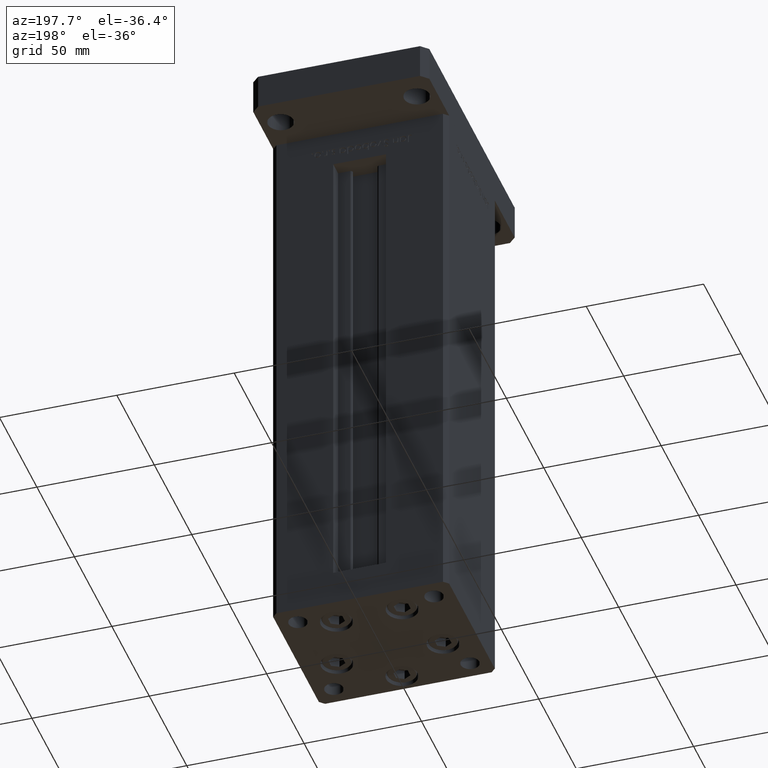
[diagram: clean part render]
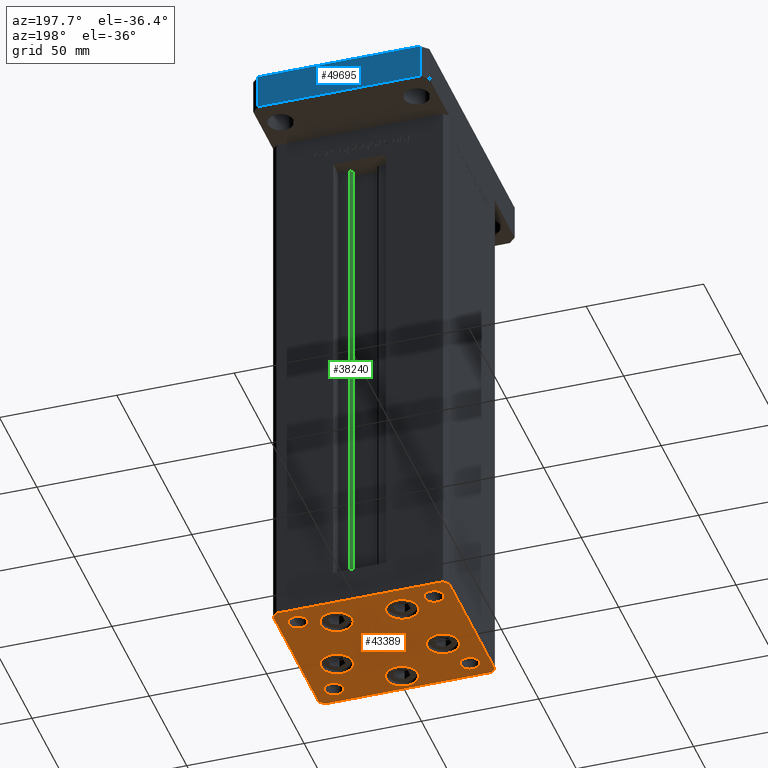
[diagram: same view with three faces highlighted in distinct colors, each labeled with its STEP entity id]
A machine part, auxiliary view with three faces highlighted in distinct colors.
Their STEP definitions:

[orange] entity #43389 — the highlighted planar face has unit normal (0, 0, -1).
#130 = CARTESIAN_POINT ( 'NONE',  ( -29.37741699797393125, -8.000000000000005329, 0.000000000000000000 ) ) ;
#256 = ORIENTED_EDGE ( 'NONE', *, *, #31520, .T. ) ;
#270 = VECTOR ( 'NONE', #30711, 1000.000000000000000 ) ;
#711 = CARTESIAN_POINT ( 'NONE',  ( 22.62741699796951877, -8.000000000000000000, 0.000000000000000000 ) ) ;
#738 = FACE_BOUND ( 'NONE', #48170, .T. ) ;
#1433 = ORIENTED_EDGE ( 'NONE', *, *, #13221, .T. ) ;
#1566 = EDGE_CURVE ( 'NONE', #18526, #13263, #46971, .T. ) ;
#1706 = VERTEX_POINT ( 'NONE', #130 ) ;
#1913 = EDGE_LOOP ( 'NONE', ( #53044, #39688 ) ) ;
#2440 = AXIS2_PLACEMENT_3D ( 'NONE', #18557, #25884, #18283 ) ;
#2469 = DIRECTION ( 'NONE',  ( 0.000000000000000000, -0.000000000000000000, -1.000000000000000000 ) ) ;
#2639 = EDGE_CURVE ( 'NONE', #17594, #31909, #20125, .T. ) ;
#3325 = EDGE_LOOP ( 'NONE', ( #8396, #27125 ) ) ;
#3338 = CARTESIAN_POINT ( 'NONE',  ( -22.62741699796951877, -8.000000000000005329, 0.000000000000000000 ) ) ;
#3517 = CIRCLE ( 'NONE', #14782, 6.750000000004410694 ) ;
#3522 = CARTESIAN_POINT ( 'NONE',  ( 7.241068579628817226, 19.50000000000000000, 0.000000000000000000 ) ) ;
#3589 = VECTOR ( 'NONE', #24152, 999.9999999999998863 ) ;
#3623 = EDGE_CURVE ( 'NONE', #31029, #19663, #12266, .T. ) ;
#3911 = VERTEX_POINT ( 'NONE', #45801 ) ;
#4147 = ORIENTED_EDGE ( 'NONE', *, *, #33895, .T. ) ;
#4318 = AXIS2_PLACEMENT_3D ( 'NONE', #51369, #15056, #40253 ) ;
#4340 = CARTESIAN_POINT ( 'NONE',  ( -35.49999999999998579, -32.50000000000001421, 0.000000000000000000 ) ) ;
#4422 = EDGE_CURVE ( 'NONE', #50507, #31667, #12516, .T. ) ;
#4552 = CIRCLE ( 'NONE', #7170, 6.750000000004412470 ) ;
#4655 = CIRCLE ( 'NONE', #26293, 4.000000000000000000 ) ;
#4812 = FACE_BOUND ( 'NONE', #36387, .T. ) ;
#5060 = CARTESIAN_POINT ( 'NONE',  ( 33.00000000000001421, 24.00000000000000711, 0.000000000000000000 ) ) ;
#5343 = FACE_BOUND ( 'NONE', #14192, .T. ) ;
#5611 = FACE_BOUND ( 'NONE', #29294, .T. ) ;
#5780 = CARTESIAN_POINT ( 'NONE',  ( 6.750000000004413359, -24.00000000000000000, 0.000000000000000000 ) ) ;
#6260 = VERTEX_POINT ( 'NONE', #28459 ) ;
#6430 = DIRECTION ( 'NONE',  ( 0.000000000000000000, -0.000000000000000000, -1.000000000000000000 ) ) ;
#6876 = CARTESIAN_POINT ( 'NONE',  ( 22.62741699796951877, -8.000000000000000000, 0.000000000000000000 ) ) ;
#7063 = DIRECTION ( 'NONE',  ( 0.7071067811865474617, -0.7071067811865474617, 0.000000000000000000 ) ) ;
#7077 = ORIENTED_EDGE ( 'NONE', *, *, #7452, .T. ) ;
#7111 = CARTESIAN_POINT ( 'NONE',  ( -37.49999999999998579, -30.50000000000001421, 0.000000000000000000 ) ) ;
#7170 = AXIS2_PLACEMENT_3D ( 'NONE', #46081, #29801, #30329 ) ;
#7346 = AXIS2_PLACEMENT_3D ( 'NONE', #27555, #6430, #18619 ) ;
#7452 = EDGE_CURVE ( 'NONE', #19954, #25192, #31544, .T. ) ;
#7933 = DIRECTION ( 'NONE',  ( 0.000000000000000000, -0.000000000000000000, -1.000000000000000000 ) ) ;
#7941 = ORIENTED_EDGE ( 'NONE', *, *, #45464, .T. ) ;
#7942 = CARTESIAN_POINT ( 'NONE',  ( -35.50000000000002842, 32.49999999999999289, 0.000000000000000000 ) ) ;
#8276 = EDGE_CURVE ( 'NONE', #3911, #31029, #29375, .T. ) ;
#8373 = CARTESIAN_POINT ( 'NONE',  ( -33.00000000000000711, -23.99999999999999289, 0.000000000000000000 ) ) ;
#8396 = ORIENTED_EDGE ( 'NONE', *, *, #32134, .F. ) ;
#8704 = DIRECTION ( 'NONE',  ( 1.000000000000000000, 0.000000000000000000, 0.000000000000000000 ) ) ;
#8914 = VECTOR ( 'NONE', #44809, 1000.000000000000000 ) ;
#9544 = DIRECTION ( 'NONE',  ( 0.000000000000000000, -0.000000000000000000, -1.000000000000000000 ) ) ;
#9617 = CARTESIAN_POINT ( 'NONE',  ( 25.00000000000000711, 24.00000000000000711, 0.000000000000000000 ) ) ;
#10410 = VECTOR ( 'NONE', #7063, 1000.000000000000114 ) ;
#10516 = CIRCLE ( 'NONE', #51202, 6.750000000004407141 ) ;
#10845 = CARTESIAN_POINT ( 'NONE',  ( -37.49999999999998579, -30.50000000000001421, 0.000000000000000000 ) ) ;
#11048 = CIRCLE ( 'NONE', #49977, 6.750000000004410694 ) ;
#11472 = DIRECTION ( 'NONE',  ( 0.000000000000000000, -0.000000000000000000, -1.000000000000000000 ) ) ;
#12159 = VERTEX_POINT ( 'NONE', #43103 ) ;
#12266 = LINE ( 'NONE', #7942, #8914 ) ;
#12348 = AXIS2_PLACEMENT_3D ( 'NONE', #6876, #7933, #23389 ) ;
#12516 = CIRCLE ( 'NONE', #16010, 3.999999999999996447 ) ;
#12586 = AXIS2_PLACEMENT_3D ( 'NONE', #20070, #44739, #40401 ) ;
#13142 = ORIENTED_EDGE ( 'NONE', *, *, #47314, .T. ) ;
#13221 = EDGE_CURVE ( 'NONE', #41283, #41201, #48166, .T. ) ;
#13263 = VERTEX_POINT ( 'NONE', #5060 ) ;
#13474 = CARTESIAN_POINT ( 'NONE',  ( 0.000000000000000000, 0.000000000000000000, 0.000000000000000000 ) ) ;
#13699 = AXIS2_PLACEMENT_3D ( 'NONE', #711, #37300, #42436 ) ;
#13943 = EDGE_CURVE ( 'NONE', #22095, #16078, #44635, .T. ) ;
#14044 = CARTESIAN_POINT ( 'NONE',  ( -37.50000000000001421, 30.49999999999998579, 0.000000000000000000 ) ) ;
#14192 = EDGE_LOOP ( 'NONE', ( #13142, #7941 ) ) ;
#14381 = CARTESIAN_POINT ( 'NONE',  ( -25.00000000000001066, -23.99999999999999289, 0.000000000000000000 ) ) ;
#14743 = VECTOR ( 'NONE', #38701, 1000.000000000000000 ) ;
#14782 = AXIS2_PLACEMENT_3D ( 'NONE', #17143, #9544, #25270 ) ;
#15056 = DIRECTION ( 'NONE',  ( -0.000000000000000000, 0.000000000000000000, 1.000000000000000000 ) ) ;
#15377 = DIRECTION ( 'NONE',  ( -1.478780668045802821E-15, 1.000000000000000000, 0.000000000000000000 ) ) ;
#16010 = AXIS2_PLACEMENT_3D ( 'NONE', #29858, #38264, #33122 ) ;
#16078 = VERTEX_POINT ( 'NONE', #3522 ) ;
#16478 = CIRCLE ( 'NONE', #4318, 3.999999999999996447 ) ;
#16486 = CARTESIAN_POINT ( 'NONE',  ( -20.74106857963763773, 19.49999999999999645, 0.000000000000000000 ) ) ;
#17143 = CARTESIAN_POINT ( 'NONE',  ( 2.939152317953647500E-15, -24.00000000000000000, 0.000000000000000000 ) ) ;
#17269 = DIRECTION ( 'NONE',  ( 1.000000000000000000, 0.000000000000000000, 0.000000000000000000 ) ) ;
#17466 = VECTOR ( 'NONE', #44135, 1000.000000000000000 ) ;
#17594 = VERTEX_POINT ( 'NONE', #37459 ) ;
#17638 = EDGE_CURVE ( 'NONE', #47281, #6260, #49657, .T. ) ;
#17879 = CIRCLE ( 'NONE', #52514, 6.750000000004410694 ) ;
#17883 = EDGE_CURVE ( 'NONE', #34444, #12159, #17879, .T. ) ;
#17983 = EDGE_LOOP ( 'NONE', ( #21866, #51300 ) ) ;
#18283 = DIRECTION ( 'NONE',  ( 1.000000000000000000, 0.000000000000000000, 0.000000000000000000 ) ) ;
#18523 = EDGE_CURVE ( 'NONE', #45785, #27322, #23999, .T. ) ;
#18526 = VERTEX_POINT ( 'NONE', #9617 ) ;
#18557 = CARTESIAN_POINT ( 'NONE',  ( -13.99106857963322703, 19.49999999999999645, 0.000000000000000000 ) ) ;
#18619 = DIRECTION ( 'NONE',  ( 1.000000000000000000, 0.000000000000000000, 0.000000000000000000 ) ) ;
#19328 = ORIENTED_EDGE ( 'NONE', *, *, #1566, .F. ) ;
#19460 = ORIENTED_EDGE ( 'NONE', *, *, #3623, .T. ) ;
#19663 = VERTEX_POINT ( 'NONE', #38020 ) ;
#19921 = EDGE_CURVE ( 'NONE', #51242, #27617, #11048, .T. ) ;
#19954 = VERTEX_POINT ( 'NONE', #14381 ) ;
#20070 = CARTESIAN_POINT ( 'NONE',  ( 13.99106857963322348, 19.50000000000000000, 0.000000000000000000 ) ) ;
#20125 = CIRCLE ( 'NONE', #12348, 6.750000000004408918 ) ;
#20736 = EDGE_CURVE ( 'NONE', #27322, #45785, #42212, .T. ) ;
#21338 = FACE_BOUND ( 'NONE', #29734, .T. ) ;
#21431 = AXIS2_PLACEMENT_3D ( 'NONE', #51772, #44450, #34961 ) ;
#21541 = VERTEX_POINT ( 'NONE', #30866 ) ;
#21601 = FACE_OUTER_BOUND ( 'NONE', #35222, .T. ) ;
#21708 = EDGE_CURVE ( 'NONE', #12159, #34444, #25800, .T. ) ;
#21786 = DIRECTION ( 'NONE',  ( 1.000000000000000000, 0.000000000000000000, 0.000000000000000000 ) ) ;
#21866 = ORIENTED_EDGE ( 'NONE', *, *, #17883, .T. ) ;
#21964 = DIRECTION ( 'NONE',  ( 0.000000000000000000, -0.000000000000000000, -1.000000000000000000 ) ) ;
#22095 = VERTEX_POINT ( 'NONE', #48562 ) ;
#22139 = PLANE ( 'NONE',  #28647 ) ;
#23008 = CARTESIAN_POINT ( 'NONE',  ( 29.00000000000001066, 24.00000000000000711, 0.000000000000000000 ) ) ;
#23389 = DIRECTION ( 'NONE',  ( 1.000000000000000000, 0.000000000000000000, 0.000000000000000000 ) ) ;
#23999 = CIRCLE ( 'NONE', #36950, 4.000000000000003553 ) ;
#24152 = DIRECTION ( 'NONE',  ( -0.7071067811865482389, 0.7071067811865469066, 0.000000000000000000 ) ) ;
#24474 = ORIENTED_EDGE ( 'NONE', *, *, #20736, .T. ) ;
#24646 = CARTESIAN_POINT ( 'NONE',  ( 37.50000000000001421, -30.50000000000000711, 0.000000000000000000 ) ) ;
#25192 = VERTEX_POINT ( 'NONE', #8373 ) ;
#25270 = DIRECTION ( 'NONE',  ( 1.000000000000000000, 0.000000000000000000, 0.000000000000000000 ) ) ;
#25311 = ORIENTED_EDGE ( 'NONE', *, *, #17638, .T. ) ;
#25349 = DIRECTION ( 'NONE',  ( 1.000000000000000000, 0.000000000000000000, 0.000000000000000000 ) ) ;
#25618 = DIRECTION ( 'NONE',  ( 0.000000000000000000, -0.000000000000000000, -1.000000000000000000 ) ) ;
#25672 = FACE_BOUND ( 'NONE', #3325, .T. ) ;
#25800 = CIRCLE ( 'NONE', #2440, 6.750000000004410694 ) ;
#25884 = DIRECTION ( 'NONE',  ( 0.000000000000000000, -0.000000000000000000, -1.000000000000000000 ) ) ;
#26023 = CARTESIAN_POINT ( 'NONE',  ( 2.939152317953647500E-15, -24.00000000000000000, 0.000000000000000000 ) ) ;
#26293 = AXIS2_PLACEMENT_3D ( 'NONE', #51494, #50965, #46895 ) ;
#26447 = EDGE_CURVE ( 'NONE', #31909, #17594, #50057, .T. ) ;
#26572 = DIRECTION ( 'NONE',  ( -0.000000000000000000, 0.000000000000000000, 1.000000000000000000 ) ) ;
#26925 = CARTESIAN_POINT ( 'NONE',  ( 13.99106857963322348, 19.50000000000000000, 0.000000000000000000 ) ) ;
#27125 = ORIENTED_EDGE ( 'NONE', *, *, #4422, .F. ) ;
#27188 = CIRCLE ( 'NONE', #28048, 4.000000000000003553 ) ;
#27322 = VERTEX_POINT ( 'NONE', #43502 ) ;
#27555 = CARTESIAN_POINT ( 'NONE',  ( -29.00000000000001066, -23.99999999999999289, 0.000000000000000000 ) ) ;
#27606 = CARTESIAN_POINT ( 'NONE',  ( 35.50000000000000711, -32.50000000000000711, 0.000000000000000000 ) ) ;
#27617 = VERTEX_POINT ( 'NONE', #5780 ) ;
#28048 = AXIS2_PLACEMENT_3D ( 'NONE', #49961, #26572, #30350 ) ;
#28231 = LINE ( 'NONE', #44766, #3589 ) ;
#28274 = DIRECTION ( 'NONE',  ( 1.000000000000000000, 9.773090005503140331E-17, 0.000000000000000000 ) ) ;
#28459 = CARTESIAN_POINT ( 'NONE',  ( 35.50000000000000711, -32.50000000000000711, 0.000000000000000000 ) ) ;
#28597 = LINE ( 'NONE', #27606, #17466 ) ;
#28647 = AXIS2_PLACEMENT_3D ( 'NONE', #13474, #29990, #17269 ) ;
#28832 = ORIENTED_EDGE ( 'NONE', *, *, #46027, .T. ) ;
#29294 = EDGE_LOOP ( 'NONE', ( #7077, #29703 ) ) ;
#29375 = LINE ( 'NONE', #45925, #270 ) ;
#29557 = ORIENTED_EDGE ( 'NONE', *, *, #51512, .F. ) ;
#29703 = ORIENTED_EDGE ( 'NONE', *, *, #51575, .T. ) ;
#29734 = EDGE_LOOP ( 'NONE', ( #37806, #24474 ) ) ;
#29754 = LINE ( 'NONE', #14044, #14743 ) ;
#29801 = DIRECTION ( 'NONE',  ( 0.000000000000000000, -0.000000000000000000, -1.000000000000000000 ) ) ;
#29858 = CARTESIAN_POINT ( 'NONE',  ( -29.00000000000001066, 24.00000000000000711, 0.000000000000000000 ) ) ;
#29885 = CARTESIAN_POINT ( 'NONE',  ( -35.50000000000002842, 32.49999999999999289, 0.000000000000000000 ) ) ;
#29990 = DIRECTION ( 'NONE',  ( -0.000000000000000000, 0.000000000000000000, 1.000000000000000000 ) ) ;
#30329 = DIRECTION ( 'NONE',  ( 1.000000000000000000, 0.000000000000000000, 0.000000000000000000 ) ) ;
#30350 = DIRECTION ( 'NONE',  ( 1.000000000000000000, 0.000000000000000000, 0.000000000000000000 ) ) ;
#30506 = AXIS2_PLACEMENT_3D ( 'NONE', #23008, #47664, #35199 ) ;
#30711 = DIRECTION ( 'NONE',  ( -1.000000000000000000, -1.954618001100629052E-16, 0.000000000000000000 ) ) ;
#30866 = CARTESIAN_POINT ( 'NONE',  ( -15.87741699796510808, -8.000000000000005329, 0.000000000000000000 ) ) ;
#31029 = VERTEX_POINT ( 'NONE', #29885 ) ;
#31499 = ORIENTED_EDGE ( 'NONE', *, *, #39972, .T. ) ;
#31520 = EDGE_CURVE ( 'NONE', #49746, #47281, #52035, .T. ) ;
#31544 = CIRCLE ( 'NONE', #7346, 4.000000000000000000 ) ;
#31639 = EDGE_CURVE ( 'NONE', #19663, #49746, #29754, .T. ) ;
#31667 = VERTEX_POINT ( 'NONE', #46306 ) ;
#31909 = VERTEX_POINT ( 'NONE', #45714 ) ;
#32134 = EDGE_CURVE ( 'NONE', #31667, #50507, #16478, .T. ) ;
#33122 = DIRECTION ( 'NONE',  ( 1.000000000000000000, 0.000000000000000000, 0.000000000000000000 ) ) ;
#33895 = EDGE_CURVE ( 'NONE', #27617, #51242, #3517, .T. ) ;
#34444 = VERTEX_POINT ( 'NONE', #16486 ) ;
#34961 = DIRECTION ( 'NONE',  ( 1.000000000000000000, 0.000000000000000000, 0.000000000000000000 ) ) ;
#35199 = DIRECTION ( 'NONE',  ( 1.000000000000000000, 0.000000000000000000, 0.000000000000000000 ) ) ;
#35222 = EDGE_LOOP ( 'NONE', ( #256, #25311, #28832, #1433, #31499, #42522, #19460, #51119 ) ) ;
#35556 = CARTESIAN_POINT ( 'NONE',  ( -33.00000000000000711, 24.00000000000000711, 0.000000000000000000 ) ) ;
#35587 = DIRECTION ( 'NONE',  ( 1.000000000000000000, 0.000000000000000000, 0.000000000000000000 ) ) ;
#36387 = EDGE_LOOP ( 'NONE', ( #53221, #4147 ) ) ;
#36950 = AXIS2_PLACEMENT_3D ( 'NONE', #42676, #25618, #25349 ) ;
#37300 = DIRECTION ( 'NONE',  ( 0.000000000000000000, -0.000000000000000000, -1.000000000000000000 ) ) ;
#37459 = CARTESIAN_POINT ( 'NONE',  ( 29.37741699797392769, -8.000000000000000000, 0.000000000000000000 ) ) ;
#37806 = ORIENTED_EDGE ( 'NONE', *, *, #18523, .T. ) ;
#38020 = CARTESIAN_POINT ( 'NONE',  ( -37.50000000000001421, 30.49999999999998579, 0.000000000000000000 ) ) ;
#38264 = DIRECTION ( 'NONE',  ( -0.000000000000000000, 0.000000000000000000, 1.000000000000000000 ) ) ;
#38701 = DIRECTION ( 'NONE',  ( 4.550094363217855288E-16, -1.000000000000000000, 0.000000000000000000 ) ) ;
#39598 = CARTESIAN_POINT ( 'NONE',  ( -13.99106857963322703, 19.49999999999999645, 0.000000000000000000 ) ) ;
#39662 = EDGE_LOOP ( 'NONE', ( #29557, #19328 ) ) ;
#39688 = ORIENTED_EDGE ( 'NONE', *, *, #2639, .T. ) ;
#39972 = EDGE_CURVE ( 'NONE', #41201, #3911, #28231, .T. ) ;
#40253 = DIRECTION ( 'NONE',  ( 1.000000000000000000, 0.000000000000000000, 0.000000000000000000 ) ) ;
#40399 = CARTESIAN_POINT ( 'NONE',  ( 33.00000000000001421, -23.99999999999999289, 0.000000000000000000 ) ) ;
#40401 = DIRECTION ( 'NONE',  ( 1.000000000000000000, 0.000000000000000000, 0.000000000000000000 ) ) ;
#40729 = CARTESIAN_POINT ( 'NONE',  ( -35.49999999999998579, -32.50000000000001421, 0.000000000000000000 ) ) ;
#40931 = DIRECTION ( 'NONE',  ( 1.000000000000000000, 0.000000000000000000, 0.000000000000000000 ) ) ;
#41201 = VERTEX_POINT ( 'NONE', #41447 ) ;
#41283 = VERTEX_POINT ( 'NONE', #24646 ) ;
#41447 = CARTESIAN_POINT ( 'NONE',  ( 37.49999999999992184, 30.50000000000001066, 0.000000000000000000 ) ) ;
#41689 = CIRCLE ( 'NONE', #49467, 6.750000000004412470 ) ;
#41935 = FACE_BOUND ( 'NONE', #17983, .T. ) ;
#42201 = FACE_BOUND ( 'NONE', #1913, .T. ) ;
#42212 = CIRCLE ( 'NONE', #21431, 4.000000000000003553 ) ;
#42436 = DIRECTION ( 'NONE',  ( 1.000000000000000000, 0.000000000000000000, 0.000000000000000000 ) ) ;
#42522 = ORIENTED_EDGE ( 'NONE', *, *, #8276, .T. ) ;
#42676 = CARTESIAN_POINT ( 'NONE',  ( 29.00000000000001066, -23.99999999999999289, 0.000000000000000000 ) ) ;
#43103 = CARTESIAN_POINT ( 'NONE',  ( -7.241068579628817226, 19.49999999999999645, 0.000000000000000000 ) ) ;
#43389 = ADVANCED_FACE ( 'NONE', ( #41935, #738, #42201, #4812, #5343, #47074, #21338, #25672, #21601, #5611 ), #22139, .T. ) ;
#43502 = CARTESIAN_POINT ( 'NONE',  ( 25.00000000000000711, -23.99999999999999289, 0.000000000000000000 ) ) ;
#44135 = DIRECTION ( 'NONE',  ( 0.7071067811865487940, 0.7071067811865463515, 0.000000000000000000 ) ) ;
#44450 = DIRECTION ( 'NONE',  ( 0.000000000000000000, -0.000000000000000000, -1.000000000000000000 ) ) ;
#44635 = CIRCLE ( 'NONE', #12586, 6.750000000004407141 ) ;
#44739 = DIRECTION ( 'NONE',  ( 0.000000000000000000, -0.000000000000000000, -1.000000000000000000 ) ) ;
#44766 = CARTESIAN_POINT ( 'NONE',  ( 37.49999999999992184, 30.50000000000001066, 0.000000000000000000 ) ) ;
#44809 = DIRECTION ( 'NONE',  ( -0.7071067811865426878, -0.7071067811865524577, 0.000000000000000000 ) ) ;
#45377 = EDGE_CURVE ( 'NONE', #16078, #22095, #10516, .T. ) ;
#45464 = EDGE_CURVE ( 'NONE', #21541, #1706, #41689, .T. ) ;
#45475 = VECTOR ( 'NONE', #15377, 1000.000000000000000 ) ;
#45714 = CARTESIAN_POINT ( 'NONE',  ( 15.87741699796511163, -8.000000000000000000, 0.000000000000000000 ) ) ;
#45785 = VERTEX_POINT ( 'NONE', #40399 ) ;
#45801 = CARTESIAN_POINT ( 'NONE',  ( 35.49999999999992184, 32.50000000000000711, 0.000000000000000000 ) ) ;
#45925 = CARTESIAN_POINT ( 'NONE',  ( 35.49999999999992184, 32.50000000000000711, 0.000000000000000000 ) ) ;
#46027 = EDGE_CURVE ( 'NONE', #6260, #41283, #28597, .T. ) ;
#46081 = CARTESIAN_POINT ( 'NONE',  ( -22.62741699796951877, -8.000000000000005329, 0.000000000000000000 ) ) ;
#46306 = CARTESIAN_POINT ( 'NONE',  ( -25.00000000000001421, 24.00000000000000711, 0.000000000000000000 ) ) ;
#46653 = ORIENTED_EDGE ( 'NONE', *, *, #45377, .T. ) ;
#46895 = DIRECTION ( 'NONE',  ( 1.000000000000000000, 0.000000000000000000, 0.000000000000000000 ) ) ;
#46971 = CIRCLE ( 'NONE', #30506, 4.000000000000003553 ) ;
#47074 = FACE_BOUND ( 'NONE', #39662, .T. ) ;
#47281 = VERTEX_POINT ( 'NONE', #4340 ) ;
#47314 = EDGE_CURVE ( 'NONE', #1706, #21541, #4552, .T. ) ;
#47322 = VECTOR ( 'NONE', #28274, 1000.000000000000000 ) ;
#47664 = DIRECTION ( 'NONE',  ( -0.000000000000000000, 0.000000000000000000, 1.000000000000000000 ) ) ;
#47788 = DIRECTION ( 'NONE',  ( 0.000000000000000000, -0.000000000000000000, -1.000000000000000000 ) ) ;
#48166 = LINE ( 'NONE', #52770, #45475 ) ;
#48170 = EDGE_LOOP ( 'NONE', ( #46653, #48787 ) ) ;
#48562 = CARTESIAN_POINT ( 'NONE',  ( 20.74106857963763062, 19.50000000000000000, 0.000000000000000000 ) ) ;
#48787 = ORIENTED_EDGE ( 'NONE', *, *, #13943, .T. ) ;
#49467 = AXIS2_PLACEMENT_3D ( 'NONE', #3338, #11472, #35587 ) ;
#49657 = LINE ( 'NONE', #40729, #47322 ) ;
#49746 = VERTEX_POINT ( 'NONE', #7111 ) ;
#49961 = CARTESIAN_POINT ( 'NONE',  ( 29.00000000000001066, 24.00000000000000711, 0.000000000000000000 ) ) ;
#49977 = AXIS2_PLACEMENT_3D ( 'NONE', #26023, #21964, #8704 ) ;
#50057 = CIRCLE ( 'NONE', #13699, 6.750000000004408918 ) ;
#50507 = VERTEX_POINT ( 'NONE', #35556 ) ;
#50829 = CARTESIAN_POINT ( 'NONE',  ( -6.750000000004408029, -24.00000000000000000, 0.000000000000000000 ) ) ;
#50965 = DIRECTION ( 'NONE',  ( 0.000000000000000000, -0.000000000000000000, -1.000000000000000000 ) ) ;
#51119 = ORIENTED_EDGE ( 'NONE', *, *, #31639, .T. ) ;
#51202 = AXIS2_PLACEMENT_3D ( 'NONE', #26925, #47788, #21786 ) ;
#51242 = VERTEX_POINT ( 'NONE', #50829 ) ;
#51300 = ORIENTED_EDGE ( 'NONE', *, *, #21708, .T. ) ;
#51369 = CARTESIAN_POINT ( 'NONE',  ( -29.00000000000001066, 24.00000000000000711, 0.000000000000000000 ) ) ;
#51494 = CARTESIAN_POINT ( 'NONE',  ( -29.00000000000001066, -23.99999999999999289, 0.000000000000000000 ) ) ;
#51512 = EDGE_CURVE ( 'NONE', #13263, #18526, #27188, .T. ) ;
#51575 = EDGE_CURVE ( 'NONE', #25192, #19954, #4655, .T. ) ;
#51772 = CARTESIAN_POINT ( 'NONE',  ( 29.00000000000001066, -23.99999999999999289, 0.000000000000000000 ) ) ;
#52035 = LINE ( 'NONE', #10845, #10410 ) ;
#52514 = AXIS2_PLACEMENT_3D ( 'NONE', #39598, #2469, #40931 ) ;
#52770 = CARTESIAN_POINT ( 'NONE',  ( 37.50000000000001421, -30.50000000000000711, 0.000000000000000000 ) ) ;
#53044 = ORIENTED_EDGE ( 'NONE', *, *, #26447, .T. ) ;
#53221 = ORIENTED_EDGE ( 'NONE', *, *, #19921, .T. ) ;

[blue] entity #49695 — the highlighted planar face has unit normal (0, -1, 0).
#1944 = DIRECTION ( 'NONE',  ( 1.000000000000000000, 2.011273595335426847E-16, 0.000000000000000000 ) ) ;
#1991 = CARTESIAN_POINT ( 'NONE',  ( 34.50000000000013500, 59.99999999999998579, 15.00000000000000000 ) ) ;
#4098 = LINE ( 'NONE', #44503, #12771 ) ;
#5772 = EDGE_CURVE ( 'NONE', #33787, #13760, #16658, .T. ) ;
#7199 = ORIENTED_EDGE ( 'NONE', *, *, #24709, .F. ) ;
#7906 = DIRECTION ( 'NONE',  ( -0.000000000000000000, -0.000000000000000000, -1.000000000000000000 ) ) ;
#8287 = ORIENTED_EDGE ( 'NONE', *, *, #45166, .F. ) ;
#9935 = LINE ( 'NONE', #30238, #37352 ) ;
#11163 = DIRECTION ( 'NONE',  ( 2.011273595335426847E-16, -1.000000000000000000, 0.000000000000000000 ) ) ;
#12771 = VECTOR ( 'NONE', #7906, 1000.000000000000000 ) ;
#13357 = VERTEX_POINT ( 'NONE', #17254 ) ;
#13638 = EDGE_CURVE ( 'NONE', #13357, #33787, #46718, .T. ) ;
#13760 = VERTEX_POINT ( 'NONE', #41253 ) ;
#16658 = LINE ( 'NONE', #45389, #28069 ) ;
#17254 = CARTESIAN_POINT ( 'NONE',  ( 34.50000000000013500, 59.99999999999998579, 15.00000000000000000 ) ) ;
#23167 = ORIENTED_EDGE ( 'NONE', *, *, #13638, .T. ) ;
#23420 = EDGE_LOOP ( 'NONE', ( #34449, #7199, #8287, #23167 ) ) ;
#24508 = AXIS2_PLACEMENT_3D ( 'NONE', #30929, #11163, #1944 ) ;
#24709 = EDGE_CURVE ( 'NONE', #30050, #13760, #4098, .T. ) ;
#24786 = DIRECTION ( 'NONE',  ( -1.000000000000000000, -2.011273595335426847E-16, 0.000000000000000000 ) ) ;
#28069 = VECTOR ( 'NONE', #24786, 1000.000000000000000 ) ;
#30050 = VERTEX_POINT ( 'NONE', #51355 ) ;
#30238 = CARTESIAN_POINT ( 'NONE',  ( 34.50000000000013500, 59.99999999999998579, 15.00000000000000000 ) ) ;
#30929 = CARTESIAN_POINT ( 'NONE',  ( 34.50000000000013500, 59.99999999999998579, 15.00000000000000000 ) ) ;
#33345 = VECTOR ( 'NONE', #39660, 1000.000000000000000 ) ;
#33787 = VERTEX_POINT ( 'NONE', #41271 ) ;
#34449 = ORIENTED_EDGE ( 'NONE', *, *, #5772, .T. ) ;
#37352 = VECTOR ( 'NONE', #46779, 1000.000000000000000 ) ;
#39079 = PLANE ( 'NONE',  #24508 ) ;
#39660 = DIRECTION ( 'NONE',  ( -0.000000000000000000, -0.000000000000000000, -1.000000000000000000 ) ) ;
#41253 = CARTESIAN_POINT ( 'NONE',  ( -34.49999999999992184, 59.99999999999997158, 0.000000000000000000 ) ) ;
#41271 = CARTESIAN_POINT ( 'NONE',  ( 34.50000000000013500, 59.99999999999998579, 0.000000000000000000 ) ) ;
#44492 = FACE_OUTER_BOUND ( 'NONE', #23420, .T. ) ;
#44503 = CARTESIAN_POINT ( 'NONE',  ( -34.49999999999992184, 59.99999999999997158, 15.00000000000000000 ) ) ;
#45166 = EDGE_CURVE ( 'NONE', #13357, #30050, #9935, .T. ) ;
#45389 = CARTESIAN_POINT ( 'NONE',  ( 34.50000000000013500, 59.99999999999998579, 0.000000000000000000 ) ) ;
#46718 = LINE ( 'NONE', #1991, #33345 ) ;
#46779 = DIRECTION ( 'NONE',  ( -1.000000000000000000, -2.011273595335426847E-16, 0.000000000000000000 ) ) ;
#49695 = ADVANCED_FACE ( 'NONE', ( #44492 ), #39079, .F. ) ;
#51355 = CARTESIAN_POINT ( 'NONE',  ( -34.49999999999992184, 59.99999999999997158, 15.00000000000000000 ) ) ;

[green] entity #38240 — the highlighted cylindrical surface (edge-blend (fillet) strip) has radius 0.9333 mm, axis along (0, 0, 1).
#917 = DIRECTION ( 'NONE',  ( -0.000000000000000000, -0.000000000000000000, 1.000000000000000000 ) ) ;
#2032 = DIRECTION ( 'NONE',  ( 0.000000000000000000, 0.000000000000000000, -1.000000000000000000 ) ) ;
#3777 = AXIS2_PLACEMENT_3D ( 'NONE', #27542, #43535, #18607 ) ;
#6154 = LINE ( 'NONE', #19432, #39273 ) ;
#8383 = EDGE_CURVE ( 'NONE', #35989, #20223, #18259, .T. ) ;
#10308 = EDGE_CURVE ( 'NONE', #47114, #45646, #6154, .T. ) ;
#10733 = ORIENTED_EDGE ( 'NONE', *, *, #10308, .F. ) ;
#11372 = DIRECTION ( 'NONE',  ( 1.000000000000000000, 0.000000000000000000, 0.000000000000000000 ) ) ;
#14200 = CARTESIAN_POINT ( 'NONE',  ( 5.375042956467947164, 24.59999999999899245, 0.000000000000000000 ) ) ;
#14548 = CYLINDRICAL_SURFACE ( 'NONE', #3777, 0.9333333333340008142 ) ;
#17609 = VECTOR ( 'NONE', #917, 1000.000000000000000 ) ;
#18259 = LINE ( 'NONE', #14200, #17609 ) ;
#18389 = CARTESIAN_POINT ( 'NONE',  ( 5.375042956467947164, 24.59999999999899245, 0.000000000000000000 ) ) ;
#18607 = DIRECTION ( 'NONE',  ( 1.000000000000000000, 0.000000000000000000, 0.000000000000000000 ) ) ;
#19432 = CARTESIAN_POINT ( 'NONE',  ( 6.183333333334001480, 25.99999999999999289, 0.000000000000000000 ) ) ;
#20223 = VERTEX_POINT ( 'NONE', #34359 ) ;
#22646 = ORIENTED_EDGE ( 'NONE', *, *, #8383, .T. ) ;
#23368 = CIRCLE ( 'NONE', #25953, 0.9333333333340008142 ) ;
#24810 = ORIENTED_EDGE ( 'NONE', *, *, #30768, .T. ) ;
#25953 = AXIS2_PLACEMENT_3D ( 'NONE', #51626, #2032, #29745 ) ;
#27542 = CARTESIAN_POINT ( 'NONE',  ( 6.183333333334001480, 25.06666666666599141, 0.000000000000000000 ) ) ;
#29745 = DIRECTION ( 'NONE',  ( 1.000000000000000000, 0.000000000000000000, 0.000000000000000000 ) ) ;
#30393 = CARTESIAN_POINT ( 'NONE',  ( 6.183333333334001480, 25.99999999999999289, 0.000000000000000000 ) ) ;
#30768 = EDGE_CURVE ( 'NONE', #20223, #45646, #23368, .T. ) ;
#31617 = DIRECTION ( 'NONE',  ( -0.000000000000000000, -0.000000000000000000, 1.000000000000000000 ) ) ;
#34359 = CARTESIAN_POINT ( 'NONE',  ( 5.375042956467948052, 24.59999999999899245, 206.0000000000000000 ) ) ;
#35989 = VERTEX_POINT ( 'NONE', #18389 ) ;
#38240 = ADVANCED_FACE ( 'NONE', ( #39198 ), #14548, .T. ) ;
#38362 = CIRCLE ( 'NONE', #45292, 0.9333333333340008142 ) ;
#39198 = FACE_OUTER_BOUND ( 'NONE', #43590, .T. ) ;
#39273 = VECTOR ( 'NONE', #31617, 1000.000000000000000 ) ;
#43535 = DIRECTION ( 'NONE',  ( -0.000000000000000000, -0.000000000000000000, 1.000000000000000000 ) ) ;
#43590 = EDGE_LOOP ( 'NONE', ( #10733, #49360, #22646, #24810 ) ) ;
#44435 = DIRECTION ( 'NONE',  ( -0.000000000000000000, -0.000000000000000000, -1.000000000000000000 ) ) ;
#45292 = AXIS2_PLACEMENT_3D ( 'NONE', #48230, #44435, #11372 ) ;
#45646 = VERTEX_POINT ( 'NONE', #46652 ) ;
#46652 = CARTESIAN_POINT ( 'NONE',  ( 6.183333333334001480, 25.99999999999999289, 206.0000000000000000 ) ) ;
#47114 = VERTEX_POINT ( 'NONE', #30393 ) ;
#48230 = CARTESIAN_POINT ( 'NONE',  ( 6.183333333334001480, 25.06666666666599141, 0.000000000000000000 ) ) ;
#49360 = ORIENTED_EDGE ( 'NONE', *, *, #50728, .F. ) ;
#50728 = EDGE_CURVE ( 'NONE', #35989, #47114, #38362, .T. ) ;
#51626 = CARTESIAN_POINT ( 'NONE',  ( 6.183333333334001480, 25.06666666666599141, 206.0000000000000000 ) ) ;